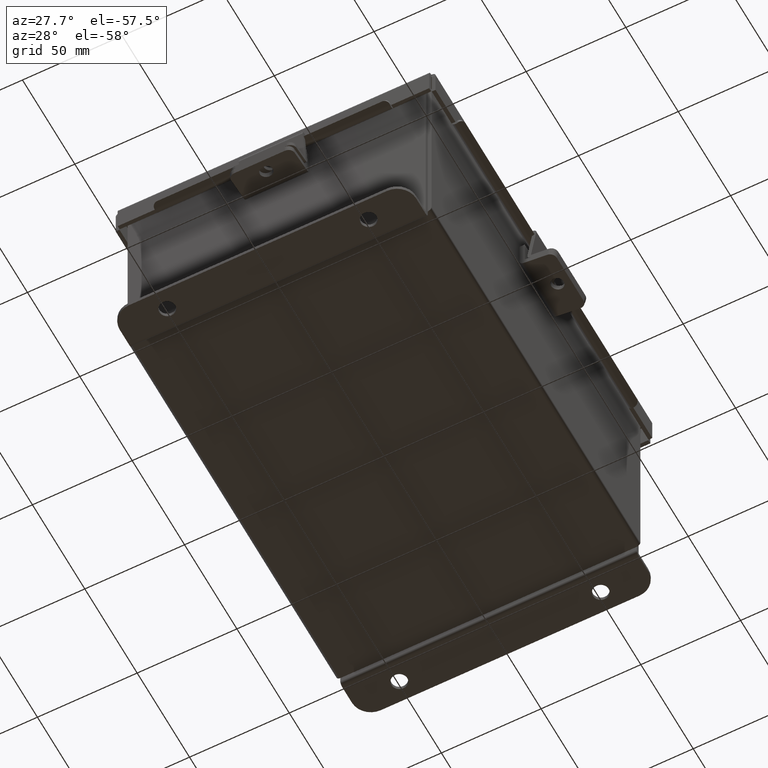
[diagram: clean part render]
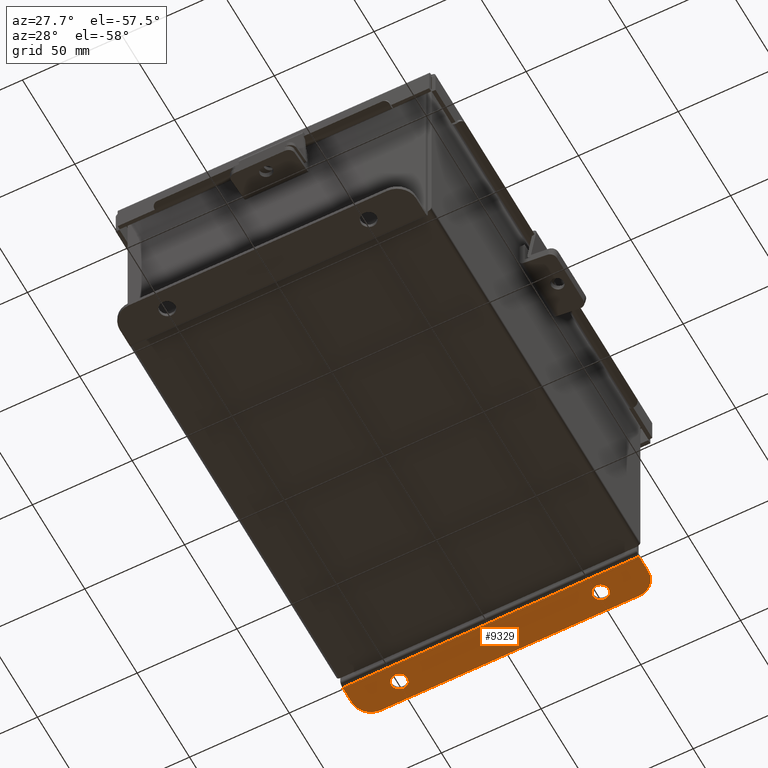
[diagram: same view with one face highlighted and labeled with its STEP entity id]
A machine part, auxiliary view. The second image highlights one B-rep face of the part: STEP entity #9329.
In plain terms, the highlighted planar face has unit normal (0, 0, 1).
Its self-contained STEP definition (entity closure, byte-faithful):
#484 = CARTESIAN_POINT ( 'NONE',  ( 1.987799999999999100, 0.2067999999999996000, -2.186999999999999800 ) ) ;
#507 = DIRECTION ( 'NONE',  ( 0.0000000000000000000, 1.000000000000000000, -3.502369222646487000E-015 ) ) ;
#719 = CARTESIAN_POINT ( 'NONE',  ( -2.925300000000001300, 0.3627999999999997300, -2.187000000000000300 ) ) ;
#817 = AXIS2_PLACEMENT_3D ( 'NONE', #7544, #7521, #7494 ) ;
#1012 = DIRECTION ( 'NONE',  ( 1.000000000000000000, 0.0000000000000000000, -0.0000000000000000000 ) ) ;
#1072 = VERTEX_POINT ( 'NONE', #5964 ) ;
#1172 = EDGE_CURVE ( 'NONE', #7651, #6340, #7270, .T. ) ;
#1352 = CIRCLE ( 'NONE', #7918, 0.1560000000000001900 ) ;
#1404 = CARTESIAN_POINT ( 'NONE',  ( 1.987799999999999100, 0.5187999999999999300, -2.187000000000001200 ) ) ;
#1519 = VERTEX_POINT ( 'NONE', #8348 ) ;
#1689 = CARTESIAN_POINT ( 'NONE',  ( -2.550300000000000900, 0.7378000000000000100, -2.187000000000001600 ) ) ;
#1873 = CARTESIAN_POINT ( 'NONE',  ( 1.987799999999999100, 0.3627999999999997300, -2.187000000000000300 ) ) ;
#2007 = CARTESIAN_POINT ( 'NONE',  ( 1.987799999999999100, 0.3627999999999997300, -2.187000000000000300 ) ) ;
#2152 = CIRCLE ( 'NONE', #7529, 0.1560000000000001900 ) ;
#2192 = LINE ( 'NONE', #9524, #8097 ) ;
#2326 = CARTESIAN_POINT ( 'NONE',  ( -2.550300000000000900, 0.3627999999999997300, -2.187000000000000300 ) ) ;
#2369 = EDGE_CURVE ( 'NONE', #5698, #6042, #8300, .T. ) ;
#2467 = CIRCLE ( 'NONE', #8165, 0.1560000000000001900 ) ;
#2578 = ORIENTED_EDGE ( 'NONE', *, *, #7614, .F. ) ;
#2604 = EDGE_LOOP ( 'NONE', ( #8512, #2578 ) ) ;
#2612 = DIRECTION ( 'NONE',  ( 0.0000000000000000000, 1.000000000000000000, -3.502369222646487000E-015 ) ) ;
#2723 = DIRECTION ( 'NONE',  ( 0.0000000000000000000, 3.332425039709726500E-015, 1.000000000000000000 ) ) ;
#2729 = EDGE_CURVE ( 'NONE', #6042, #7651, #7608, .T. ) ;
#2920 = CIRCLE ( 'NONE', #4804, 0.1560000000000001900 ) ;
#3065 = CARTESIAN_POINT ( 'NONE',  ( 2.925299999999999100, 0.01300000000000010700, -2.186999999999998900 ) ) ;
#3081 = EDGE_CURVE ( 'NONE', #9533, #1519, #1352, .T. ) ;
#3107 = FACE_BOUND ( 'NONE', #2604, .T. ) ;
#3137 = CARTESIAN_POINT ( 'NONE',  ( -1.987800000000000700, 0.3627999999999997300, -2.187000000000000300 ) ) ;
#3296 = LINE ( 'NONE', #3065, #5018 ) ;
#3362 = DIRECTION ( 'NONE',  ( 0.0000000000000000000, 1.000000000000000000, -3.332425039709726500E-015 ) ) ;
#3727 = ORIENTED_EDGE ( 'NONE', *, *, #7075, .F. ) ;
#3885 = DIRECTION ( 'NONE',  ( 0.0000000000000000000, 1.000000000000000000, -3.502369222646487000E-015 ) ) ;
#3911 = DIRECTION ( 'NONE',  ( 0.0000000000000000000, -1.000000000000000000, 3.642463991552350200E-015 ) ) ;
#3979 = CARTESIAN_POINT ( 'NONE',  ( -2.925300000000000500, 0.01300000000000010700, -2.186999999999998900 ) ) ;
#4186 = VERTEX_POINT ( 'NONE', #1404 ) ;
#4305 = VERTEX_POINT ( 'NONE', #484 ) ;
#4361 = EDGE_CURVE ( 'NONE', #4305, #4186, #2152, .T. ) ;
#4639 = ORIENTED_EDGE ( 'NONE', *, *, #1172, .T. ) ;
#4774 = ORIENTED_EDGE ( 'NONE', *, *, #2729, .T. ) ;
#4804 = AXIS2_PLACEMENT_3D ( 'NONE', #3137, #8328, #3885 ) ;
#4911 = CARTESIAN_POINT ( 'NONE',  ( 0.0000000000000000000, -6.556435184794231700E-015, -2.186999999999998900 ) ) ;
#5018 = VECTOR ( 'NONE', #6755, 39.37007874015748100 ) ;
#5063 = VECTOR ( 'NONE', #1012, 39.37007874015748100 ) ;
#5077 = FACE_BOUND ( 'NONE', #5226, .T. ) ;
#5209 = ORIENTED_EDGE ( 'NONE', *, *, #4361, .F. ) ;
#5226 = EDGE_LOOP ( 'NONE', ( #3727, #5209 ) ) ;
#5259 = EDGE_CURVE ( 'NONE', #6340, #6148, #5480, .T. ) ;
#5480 = CIRCLE ( 'NONE', #817, 0.3750000000000000600 ) ;
#5698 = VERTEX_POINT ( 'NONE', #3979 ) ;
#5738 = DIRECTION ( 'NONE',  ( 0.0000000000000000000, -3.702694488566362300E-015, -1.000000000000000000 ) ) ;
#5746 = DIRECTION ( 'NONE',  ( 0.0000000000000000000, 1.000000000000000000, -3.502369222646487000E-015 ) ) ;
#5810 = DIRECTION ( 'NONE',  ( 0.0000000000000000000, -1.000000000000000000, 3.332425039709726500E-015 ) ) ;
#5888 = CARTESIAN_POINT ( 'NONE',  ( -1.987800000000000700, 0.3627999999999997300, -2.187000000000000300 ) ) ;
#5913 = ORIENTED_EDGE ( 'NONE', *, *, #5259, .T. ) ;
#5924 = ORIENTED_EDGE ( 'NONE', *, *, #6190, .F. ) ;
#5964 = CARTESIAN_POINT ( 'NONE',  ( 2.925299999999999100, 0.01299999999999956100, -2.186999999999998900 ) ) ;
#6042 = VERTEX_POINT ( 'NONE', #719 ) ;
#6148 = VERTEX_POINT ( 'NONE', #8955 ) ;
#6190 = EDGE_CURVE ( 'NONE', #5698, #1072, #3296, .T. ) ;
#6340 = VERTEX_POINT ( 'NONE', #8426 ) ;
#6395 = CARTESIAN_POINT ( 'NONE',  ( -2.925300000000001300, -6.556435184794231700E-015, -2.186999999999998900 ) ) ;
#6408 = PLANE ( 'NONE',  #6670 ) ;
#6421 = DIRECTION ( 'NONE',  ( 0.0000000000000000000, -3.702694488566362300E-015, -1.000000000000000000 ) ) ;
#6425 = DIRECTION ( 'NONE',  ( -0.0000000000000000000, -3.332425039709726100E-015, -1.000000000000000000 ) ) ;
#6670 = AXIS2_PLACEMENT_3D ( 'NONE', #4911, #2723, #7909 ) ;
#6755 = DIRECTION ( 'NONE',  ( 1.000000000000000000, 4.669346722839134300E-017, -1.556024793827568100E-031 ) ) ;
#6917 = CARTESIAN_POINT ( 'NONE',  ( 0.0000000000000000000, 0.7378000000000000100, -2.187000000000001600 ) ) ;
#7040 = DIRECTION ( 'NONE',  ( 0.0000000000000000000, -3.702694488566362300E-015, -1.000000000000000000 ) ) ;
#7075 = EDGE_CURVE ( 'NONE', #4186, #4305, #2467, .T. ) ;
#7108 = AXIS2_PLACEMENT_3D ( 'NONE', #2326, #6425, #3911 ) ;
#7270 = LINE ( 'NONE', #6917, #5063 ) ;
#7494 = DIRECTION ( 'NONE',  ( 0.0000000000000000000, -1.000000000000000000, 3.642463991552350200E-015 ) ) ;
#7521 = DIRECTION ( 'NONE',  ( -0.0000000000000000000, -3.332425039709726100E-015, -1.000000000000000000 ) ) ;
#7529 = AXIS2_PLACEMENT_3D ( 'NONE', #2007, #6421, #507 ) ;
#7544 = CARTESIAN_POINT ( 'NONE',  ( 2.550299999999999100, 0.3627999999999997300, -2.187000000000000300 ) ) ;
#7608 = CIRCLE ( 'NONE', #7108, 0.3750000000000000600 ) ;
#7614 = EDGE_CURVE ( 'NONE', #1519, #9533, #2920, .T. ) ;
#7651 = VERTEX_POINT ( 'NONE', #1689 ) ;
#7793 = ORIENTED_EDGE ( 'NONE', *, *, #2369, .T. ) ;
#7909 = DIRECTION ( 'NONE',  ( 0.0000000000000000000, -1.000000000000000000, 3.332425039709726500E-015 ) ) ;
#7918 = AXIS2_PLACEMENT_3D ( 'NONE', #5888, #5738, #5746 ) ;
#8071 = VECTOR ( 'NONE', #3362, 39.37007874015748100 ) ;
#8097 = VECTOR ( 'NONE', #5810, 39.37007874015748100 ) ;
#8165 = AXIS2_PLACEMENT_3D ( 'NONE', #1873, #7040, #2612 ) ;
#8300 = LINE ( 'NONE', #6395, #8071 ) ;
#8328 = DIRECTION ( 'NONE',  ( 0.0000000000000000000, -3.702694488566362300E-015, -1.000000000000000000 ) ) ;
#8348 = CARTESIAN_POINT ( 'NONE',  ( -1.987800000000000700, 0.2067999999999996000, -2.186999999999999800 ) ) ;
#8426 = CARTESIAN_POINT ( 'NONE',  ( 2.550299999999999100, 0.7378000000000000100, -2.187000000000001600 ) ) ;
#8512 = ORIENTED_EDGE ( 'NONE', *, *, #3081, .F. ) ;
#8882 = CARTESIAN_POINT ( 'NONE',  ( -1.987800000000000700, 0.5187999999999999300, -2.187000000000001200 ) ) ;
#8955 = CARTESIAN_POINT ( 'NONE',  ( 2.925299999999999100, 0.3627999999999997300, -2.187000000000000300 ) ) ;
#9050 = FACE_OUTER_BOUND ( 'NONE', #9195, .T. ) ;
#9195 = EDGE_LOOP ( 'NONE', ( #4639, #5913, #9202, #5924, #7793, #4774 ) ) ;
#9202 = ORIENTED_EDGE ( 'NONE', *, *, #9443, .T. ) ;
#9329 = ADVANCED_FACE ( 'NONE', ( #3107, #5077, #9050 ), #6408, .F. ) ;
#9443 = EDGE_CURVE ( 'NONE', #6148, #1072, #2192, .T. ) ;
#9524 = CARTESIAN_POINT ( 'NONE',  ( 2.925299999999999100, -6.556435184794231700E-015, -2.186999999999998900 ) ) ;
#9533 = VERTEX_POINT ( 'NONE', #8882 ) ;